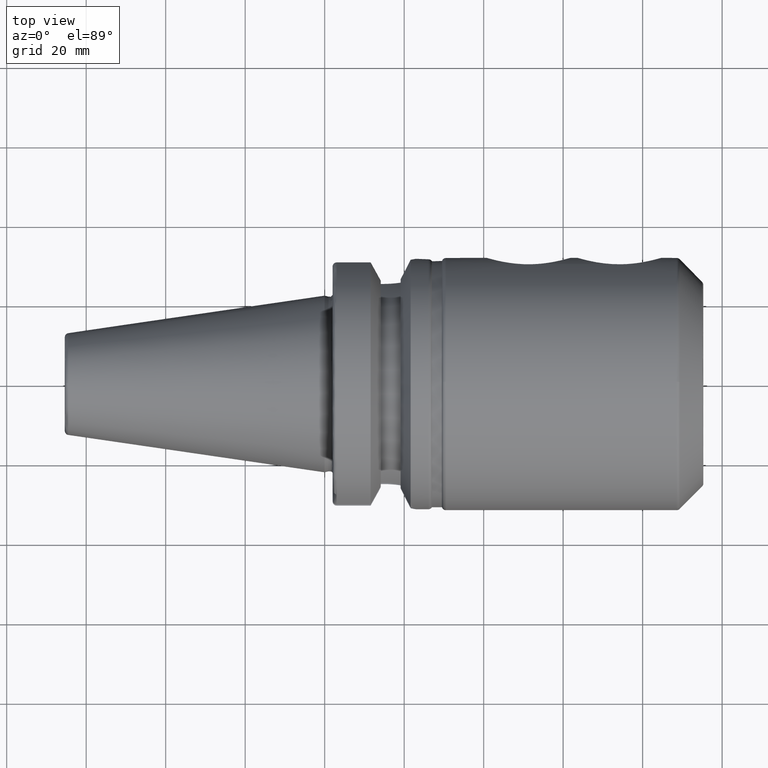
[diagram: clean part render]
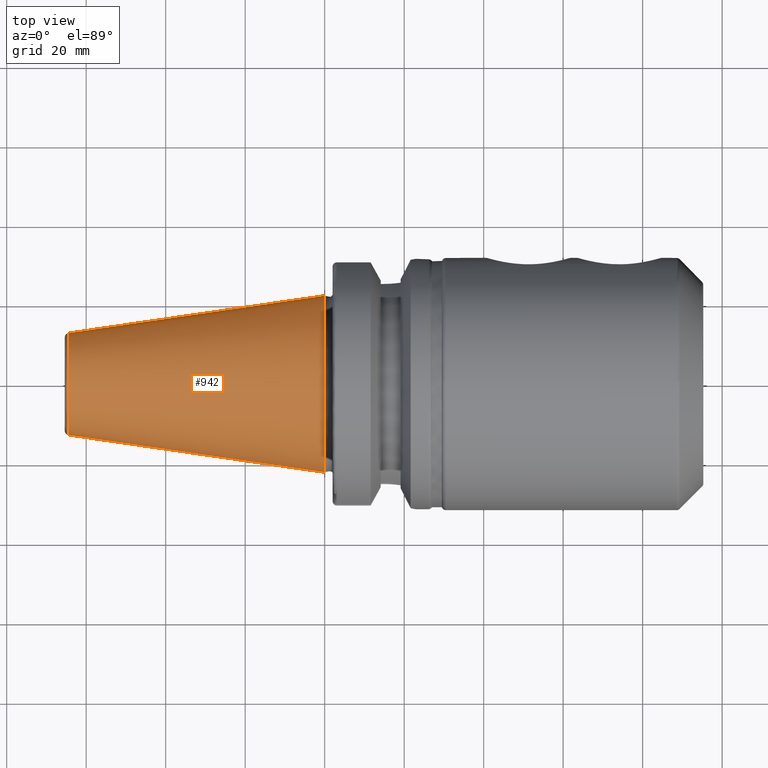
[diagram: same view with one face highlighted and labeled with its STEP entity id]
A machine part, top view. The second image highlights one B-rep face of the part: STEP entity #942.
In plain terms, the highlighted conical surface has half-angle 8.297 deg.
Its self-contained STEP definition (entity closure, byte-faithful):
#28=CONICAL_SURFACE('',#1075,17.5186442890469,0.144812498238939);
#98=LINE('',#2179,#146);
#146=VECTOR('',#1347,17.5186442890469);
#244=FACE_OUTER_BOUND('',#309,.T.);
#309=EDGE_LOOP('',(#854,#855,#856,#857,#858));
#369=CIRCLE('',#1072,12.8122885780937);
#370=CIRCLE('',#1073,12.8122885780937);
#372=CIRCLE('',#1076,22.225);
#461=VERTEX_POINT('',#2171);
#462=VERTEX_POINT('',#2172);
#463=VERTEX_POINT('',#2177);
#594=EDGE_CURVE('',#461,#462,#369,.T.);
#595=EDGE_CURVE('',#462,#461,#370,.T.);
#597=EDGE_CURVE('',#463,#463,#372,.T.);
#598=EDGE_CURVE('',#463,#461,#98,.T.);
#854=ORIENTED_EDGE('',*,*,#597,.F.);
#855=ORIENTED_EDGE('',*,*,#598,.T.);
#856=ORIENTED_EDGE('',*,*,#594,.T.);
#857=ORIENTED_EDGE('',*,*,#595,.T.);
#858=ORIENTED_EDGE('',*,*,#598,.F.);
#942=ADVANCED_FACE('',(#244),#28,.T.);
#1072=AXIS2_PLACEMENT_3D('',#2173,#1337,#1338);
#1073=AXIS2_PLACEMENT_3D('',#2174,#1339,#1340);
#1075=AXIS2_PLACEMENT_3D('',#2176,#1343,#1344);
#1076=AXIS2_PLACEMENT_3D('',#2178,#1345,#1346);
#1337=DIRECTION('center_axis',(1.,0.,0.));
#1338=DIRECTION('ref_axis',(0.,0.,-1.));
#1339=DIRECTION('center_axis',(1.,0.,0.));
#1340=DIRECTION('ref_axis',(0.,0.,-1.));
#1343=DIRECTION('center_axis',(1.,0.,0.));
#1344=DIRECTION('ref_axis',(0.,1.,0.));
#1345=DIRECTION('center_axis',(1.,0.,0.));
#1346=DIRECTION('ref_axis',(0.,0.,-1.));
#1347=DIRECTION('',(-0.989532981063282,0.144306893071729,1.76724974695192E-17));
#2171=CARTESIAN_POINT('',(-64.5443068930717,-12.8122885780937,-1.56905281969147E-15));
#2172=CARTESIAN_POINT('',(-64.5443068930717,-1.56905281969147E-15,12.8122885780937));
#2173=CARTESIAN_POINT('Origin',(-64.5443068930717,0.,0.));
#2174=CARTESIAN_POINT('Origin',(-64.5443068930717,0.,0.));
#2176=CARTESIAN_POINT('Origin',(-32.2721534465359,0.,0.));
#2177=CARTESIAN_POINT('',(4.44089209850063E-15,-22.225,-2.72177751110499E-15));
#2178=CARTESIAN_POINT('Origin',(1.11022302462516E-15,0.,0.));
#2179=CARTESIAN_POINT('',(-32.2721534465359,-17.5186442890469,-2.14541516539823E-15));